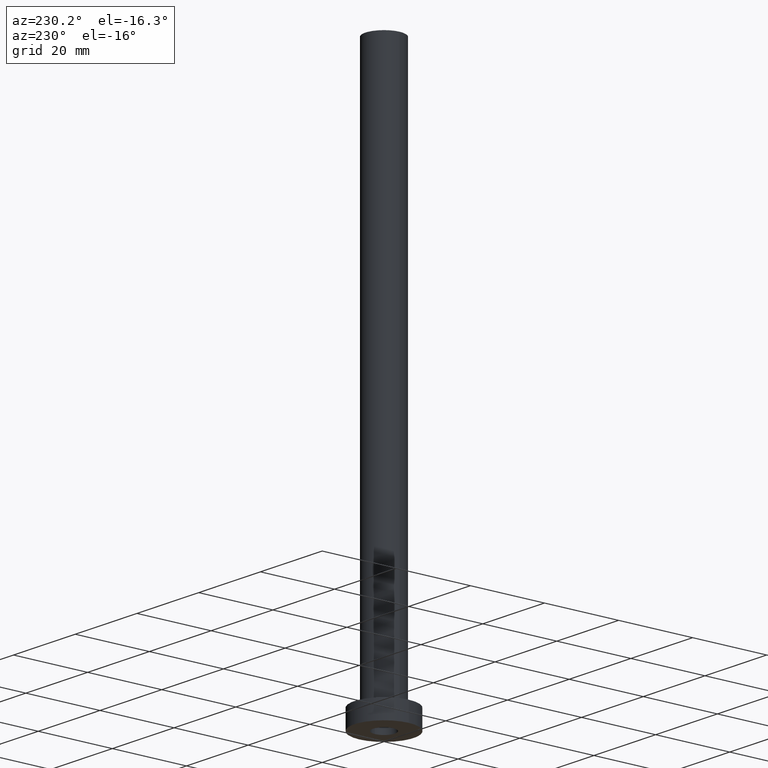
[diagram: clean part render]
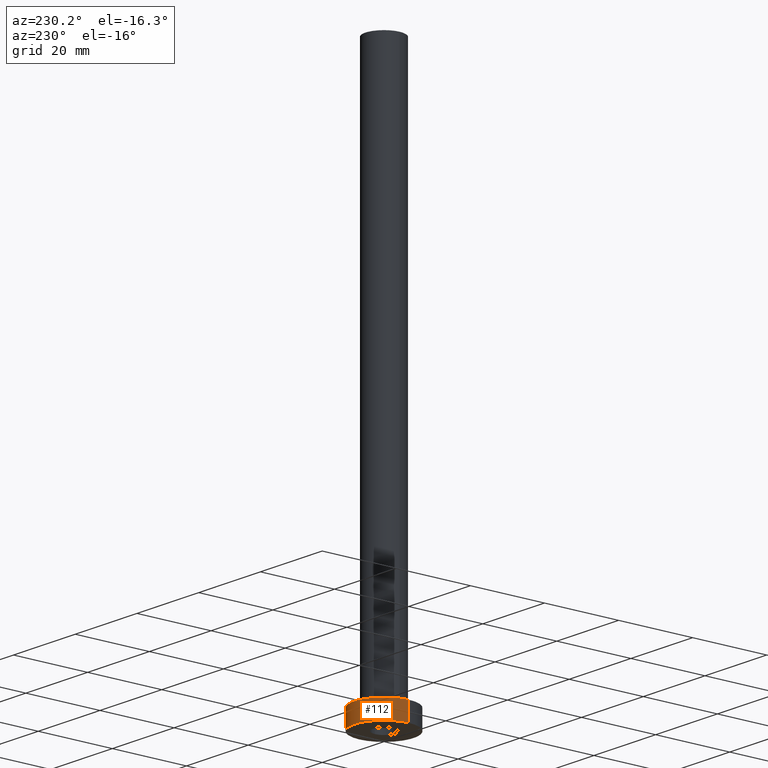
[diagram: same view with one face highlighted and labeled with its STEP entity id]
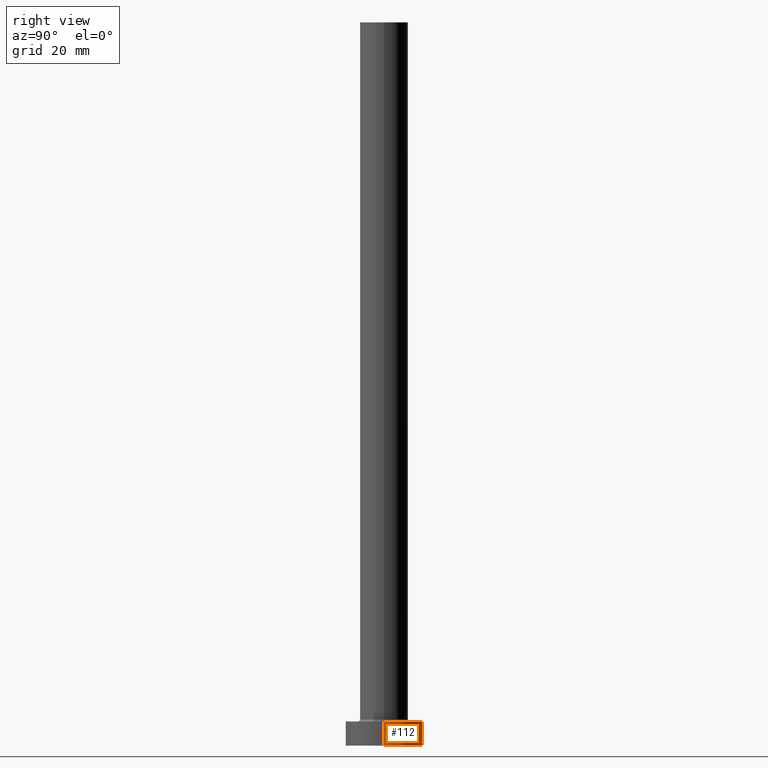
[diagram: same view with one face highlighted and labeled with its STEP entity id]
A machine part, auxiliary view. The second image highlights one B-rep face of the part: STEP entity #112.
A second angle (right view) of the same face is appended — the face is thin or edge-on in the first view.
In plain terms, the highlighted cylindrical surface (partial cylindrical patch) has radius 8 mm, axis along (-0, -0, -1).
Its self-contained STEP definition (entity closure, byte-faithful):
#29 = CARTESIAN_POINT ( 'NONE',  ( 8.000000000000000000, 9.797174393178825657E-16, 5.000000000000000000 ) ) ;
#91 = AXIS2_PLACEMENT_3D ( 'NONE', #209, #100, #273 ) ;
#96 = LINE ( 'NONE', #234, #263 ) ;
#100 = DIRECTION ( 'NONE',  ( 0.000000000000000000, 0.000000000000000000, 1.000000000000000000 ) ) ;
#108 = DIRECTION ( 'NONE',  ( -0.000000000000000000, -0.000000000000000000, -1.000000000000000000 ) ) ;
#111 = CIRCLE ( 'NONE', #91, 8.000000000000000000 ) ;
#112 = ADVANCED_FACE ( 'NONE', ( #177 ), #300, .T. ) ;
#134 = VERTEX_POINT ( 'NONE', #215 ) ;
#163 = AXIS2_PLACEMENT_3D ( 'NONE', #320, #108, #388 ) ;
#166 = LINE ( 'NONE', #29, #394 ) ;
#177 = FACE_OUTER_BOUND ( 'NONE', #212, .T. ) ;
#209 = CARTESIAN_POINT ( 'NONE',  ( 0.000000000000000000, 0.000000000000000000, 0.000000000000000000 ) ) ;
#212 = EDGE_LOOP ( 'NONE', ( #249, #356, #272, #310 ) ) ;
#215 = CARTESIAN_POINT ( 'NONE',  ( 8.000000000000000000, 9.797174393178825657E-16, 5.000000000000000000 ) ) ;
#234 = CARTESIAN_POINT ( 'NONE',  ( -8.000000000000000000, 0.000000000000000000, 5.000000000000000000 ) ) ;
#245 = DIRECTION ( 'NONE',  ( 0.000000000000000000, 0.000000000000000000, 1.000000000000000000 ) ) ;
#249 = ORIENTED_EDGE ( 'NONE', *, *, #389, .F. ) ;
#252 = DIRECTION ( 'NONE',  ( 1.000000000000000000, 0.000000000000000000, 0.000000000000000000 ) ) ;
#263 = VECTOR ( 'NONE', #282, 1000.000000000000000 ) ;
#265 = EDGE_CURVE ( 'NONE', #424, #322, #96, .T. ) ;
#272 = ORIENTED_EDGE ( 'NONE', *, *, #405, .T. ) ;
#273 = DIRECTION ( 'NONE',  ( 1.000000000000000000, 0.000000000000000000, 0.000000000000000000 ) ) ;
#278 = CARTESIAN_POINT ( 'NONE',  ( 8.000000000000000000, 9.797174393178825657E-16, 0.000000000000000000 ) ) ;
#282 = DIRECTION ( 'NONE',  ( -0.000000000000000000, -0.000000000000000000, -1.000000000000000000 ) ) ;
#300 = CYLINDRICAL_SURFACE ( 'NONE', #163, 8.000000000000000000 ) ;
#310 = ORIENTED_EDGE ( 'NONE', *, *, #265, .F. ) ;
#313 = DIRECTION ( 'NONE',  ( -0.000000000000000000, -0.000000000000000000, -1.000000000000000000 ) ) ;
#319 = VERTEX_POINT ( 'NONE', #278 ) ;
#320 = CARTESIAN_POINT ( 'NONE',  ( 0.000000000000000000, 0.000000000000000000, 5.000000000000000000 ) ) ;
#322 = VERTEX_POINT ( 'NONE', #419 ) ;
#341 = AXIS2_PLACEMENT_3D ( 'NONE', #423, #245, #252 ) ;
#356 = ORIENTED_EDGE ( 'NONE', *, *, #443, .T. ) ;
#361 = CIRCLE ( 'NONE', #341, 8.000000000000000000 ) ;
#388 = DIRECTION ( 'NONE',  ( -1.000000000000000000, 0.000000000000000000, 0.000000000000000000 ) ) ;
#389 = EDGE_CURVE ( 'NONE', #134, #424, #361, .T. ) ;
#394 = VECTOR ( 'NONE', #313, 1000.000000000000000 ) ;
#405 = EDGE_CURVE ( 'NONE', #319, #322, #111, .T. ) ;
#408 = CARTESIAN_POINT ( 'NONE',  ( -8.000000000000000000, 0.000000000000000000, 5.000000000000000000 ) ) ;
#419 = CARTESIAN_POINT ( 'NONE',  ( -8.000000000000000000, 0.000000000000000000, 0.000000000000000000 ) ) ;
#423 = CARTESIAN_POINT ( 'NONE',  ( 0.000000000000000000, 0.000000000000000000, 5.000000000000000000 ) ) ;
#424 = VERTEX_POINT ( 'NONE', #408 ) ;
#443 = EDGE_CURVE ( 'NONE', #134, #319, #166, .T. ) ;